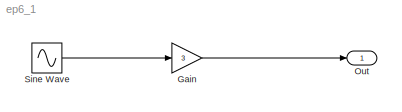
MODEL ep6_1
KIND model
BLOCK [Gain] Gain
  Gain = 3
  OutDataTypeStr = Inherit: Inherit via internal rule
  ParamDataTypeStr = Inherit: Inherit via internal rule
  SID = 2
  SaturateOnIntegerOverflow = off
BLOCK [Outport] Out
  IconDisplay = Port number
  SID = 3
BLOCK [Sin] Sine Wave
  Frequency = 4
  Ports = [0, 1]
  SID = 1
  SampleTime = 0
LINE Gain:1 -> Out:1
LINE Sine Wave:1 -> Gain:1
